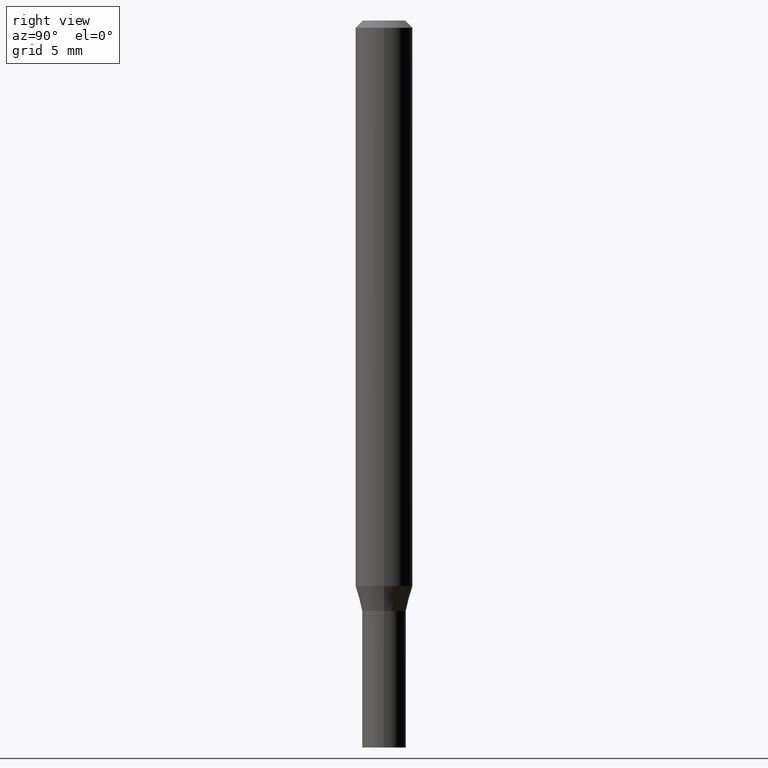
[diagram: clean part render]
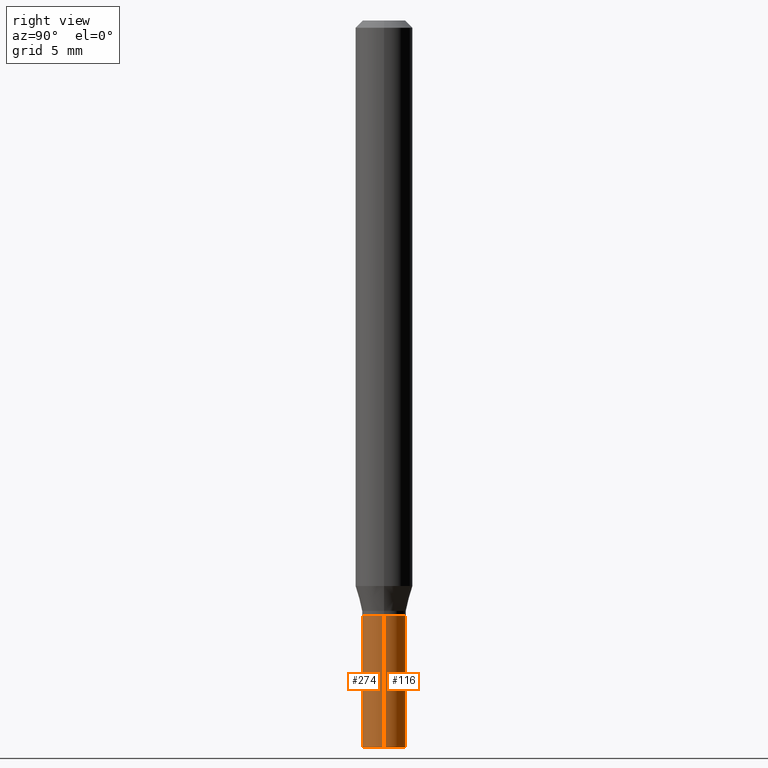
[diagram: same view with one multi-face feature highlighted, each face labeled with its STEP entity id]
A machine part, right view. The highlighted faces form ONE feature: a constant-radius fillet chain: 2 tangent blend faces with common blend radius 1.1506 mm. The faces share edges in the B-rep.
Their STEP definitions:
[1] entity #116 (Cylinder):
#2 = LINE ( 'NONE', #36, #151 ) ;
#21 = ORIENTED_EDGE ( 'NONE', *, *, #256, .T. ) ;
#27 = VERTEX_POINT ( 'NONE', #380 ) ;
#31 = ORIENTED_EDGE ( 'NONE', *, *, #184, .F. ) ;
#33 = FACE_OUTER_BOUND ( 'NONE', #127, .T. ) ;
#36 = CARTESIAN_POINT ( 'NONE',  ( 0.04529999999999999999, -3.163282092991878851E-16, 2.208908079435559189E-30 ) ) ;
#59 = CIRCLE ( 'NONE', #282, 0.04529999999999999999 ) ;
#104 = LINE ( 'NONE', #385, #191 ) ;
#106 = CARTESIAN_POINT ( 'NONE',  ( 0.04529999999999999999, -4.604914737800224341E-15, -1.228300000000000169 ) ) ;
#116 = ADVANCED_FACE ( 'NONE', ( #33 ), #173, .T. ) ;
#119 = CARTESIAN_POINT ( 'NONE',  ( 3.668203209277704895E-29, -5.237222008264718177E-15, -1.500000000000000222 ) ) ;
#127 = EDGE_LOOP ( 'NONE', ( #21, #312, #352, #31 ) ) ;
#151 = VECTOR ( 'NONE', #427, 39.37007874015748143 ) ;
#172 = CARTESIAN_POINT ( 'NONE',  ( -0.04529999999999999999, -4.441028409083551685E-15, -1.228300000000000169 ) ) ;
#173 = CYLINDRICAL_SURFACE ( 'NONE', #463, 0.04529999999999999999 ) ;
#182 = DIRECTION ( 'NONE',  ( -2.445468806185136597E-29, 3.491481338843145583E-15, 1.000000000000000000 ) ) ;
#184 = EDGE_CURVE ( 'NONE', #27, #442, #2, .T. ) ;
#191 = VECTOR ( 'NONE', #460, 39.37007874015748143 ) ;
#192 = DIRECTION ( 'NONE',  ( 1.000000000000000000, -6.982962677686271444E-15, 0.000000000000000000 ) ) ;
#220 = EDGE_CURVE ( 'NONE', #244, #406, #104, .T. ) ;
#224 = DIRECTION ( 'NONE',  ( -2.445468806185136597E-29, 3.491481338843145583E-15, 1.000000000000000000 ) ) ;
#227 = CARTESIAN_POINT ( 'NONE',  ( 3.003769334637203924E-29, -4.288586528501036061E-15, -1.228300000000000169 ) ) ;
#244 = VERTEX_POINT ( 'NONE', #409 ) ;
#252 = AXIS2_PLACEMENT_3D ( 'NONE', #119, #224, #367 ) ;
#256 = EDGE_CURVE ( 'NONE', #27, #244, #423, .T. ) ;
#281 = DIRECTION ( 'NONE',  ( 1.000000000000000000, -6.982962677686266711E-15, 4.876176775795936353E-29 ) ) ;
#282 = AXIS2_PLACEMENT_3D ( 'NONE', #227, #295, #192 ) ;
#295 = DIRECTION ( 'NONE',  ( -2.445468806185136597E-29, 3.491481338843145583E-15, 1.000000000000000000 ) ) ;
#312 = ORIENTED_EDGE ( 'NONE', *, *, #220, .T. ) ;
#319 = EDGE_CURVE ( 'NONE', #442, #406, #59, .T. ) ;
#352 = ORIENTED_EDGE ( 'NONE', *, *, #319, .F. ) ;
#367 = DIRECTION ( 'NONE',  ( 1.000000000000000000, -6.982962677686271444E-15, 0.000000000000000000 ) ) ;
#380 = CARTESIAN_POINT ( 'NONE',  ( 0.04529999999999999999, -5.553550217563906456E-15, -1.500000000000000222 ) ) ;
#385 = CARTESIAN_POINT ( 'NONE',  ( -0.04529999999999999999, 3.218758592993253841E-16, -2.228277595885472214E-30 ) ) ;
#392 = CARTESIAN_POINT ( 'NONE',  ( 0.000000000000000000, 0.000000000000000000, 0.000000000000000000 ) ) ;
#406 = VERTEX_POINT ( 'NONE', #172 ) ;
#409 = CARTESIAN_POINT ( 'NONE',  ( -0.04529999999999999999, -4.441028409083551685E-15, -1.500000000000000222 ) ) ;
#423 = CIRCLE ( 'NONE', #252, 0.04529999999999999999 ) ;
#427 = DIRECTION ( 'NONE',  ( -2.445468806185136877E-29, 3.491481338843145188E-15, 1.000000000000000000 ) ) ;
#442 = VERTEX_POINT ( 'NONE', #106 ) ;
#460 = DIRECTION ( 'NONE',  ( -2.445468806185136877E-29, 3.491481338843145188E-15, 1.000000000000000000 ) ) ;
#463 = AXIS2_PLACEMENT_3D ( 'NONE', #392, #182, #281 ) ;
[2] entity #274 (Cylinder):
#1 = EDGE_CURVE ( 'NONE', #244, #27, #378, .T. ) ;
#2 = LINE ( 'NONE', #36, #151 ) ;
#20 = ORIENTED_EDGE ( 'NONE', *, *, #184, .T. ) ;
#27 = VERTEX_POINT ( 'NONE', #380 ) ;
#36 = CARTESIAN_POINT ( 'NONE',  ( 0.04529999999999999999, -3.163282092991878851E-16, 2.208908079435559189E-30 ) ) ;
#58 = ORIENTED_EDGE ( 'NONE', *, *, #339, .F. ) ;
#77 = CARTESIAN_POINT ( 'NONE',  ( 3.003769334637203924E-29, -4.288586528501036061E-15, -1.228300000000000169 ) ) ;
#104 = LINE ( 'NONE', #385, #191 ) ;
#106 = CARTESIAN_POINT ( 'NONE',  ( 0.04529999999999999999, -4.604914737800224341E-15, -1.228300000000000169 ) ) ;
#111 = CYLINDRICAL_SURFACE ( 'NONE', #386, 0.04529999999999999999 ) ;
#141 = DIRECTION ( 'NONE',  ( -2.445468806185136597E-29, 3.491481338843145583E-15, 1.000000000000000000 ) ) ;
#151 = VECTOR ( 'NONE', #427, 39.37007874015748143 ) ;
#155 = ORIENTED_EDGE ( 'NONE', *, *, #1, .T. ) ;
#158 = CARTESIAN_POINT ( 'NONE',  ( 3.668203209277704895E-29, -5.237222008264718177E-15, -1.500000000000000222 ) ) ;
#170 = AXIS2_PLACEMENT_3D ( 'NONE', #77, #141, #298 ) ;
#172 = CARTESIAN_POINT ( 'NONE',  ( -0.04529999999999999999, -4.441028409083551685E-15, -1.228300000000000169 ) ) ;
#184 = EDGE_CURVE ( 'NONE', #27, #442, #2, .T. ) ;
#189 = FACE_OUTER_BOUND ( 'NONE', #408, .T. ) ;
#191 = VECTOR ( 'NONE', #460, 39.37007874015748143 ) ;
#220 = EDGE_CURVE ( 'NONE', #244, #406, #104, .T. ) ;
#240 = DIRECTION ( 'NONE',  ( -2.445468806185136597E-29, 3.491481338843145583E-15, 1.000000000000000000 ) ) ;
#244 = VERTEX_POINT ( 'NONE', #409 ) ;
#259 = CARTESIAN_POINT ( 'NONE',  ( 0.000000000000000000, 0.000000000000000000, 0.000000000000000000 ) ) ;
#262 = AXIS2_PLACEMENT_3D ( 'NONE', #158, #240, #414 ) ;
#274 = ADVANCED_FACE ( 'NONE', ( #189 ), #111, .T. ) ;
#298 = DIRECTION ( 'NONE',  ( 1.000000000000000000, -6.982962677686271444E-15, 0.000000000000000000 ) ) ;
#300 = DIRECTION ( 'NONE',  ( 1.000000000000000000, -6.982962677686266711E-15, 4.876176775795936353E-29 ) ) ;
#339 = EDGE_CURVE ( 'NONE', #406, #442, #354, .T. ) ;
#354 = CIRCLE ( 'NONE', #170, 0.04529999999999999999 ) ;
#378 = CIRCLE ( 'NONE', #262, 0.04529999999999999999 ) ;
#380 = CARTESIAN_POINT ( 'NONE',  ( 0.04529999999999999999, -5.553550217563906456E-15, -1.500000000000000222 ) ) ;
#385 = CARTESIAN_POINT ( 'NONE',  ( -0.04529999999999999999, 3.218758592993253841E-16, -2.228277595885472214E-30 ) ) ;
#386 = AXIS2_PLACEMENT_3D ( 'NONE', #259, #404, #300 ) ;
#404 = DIRECTION ( 'NONE',  ( -2.445468806185136597E-29, 3.491481338843145583E-15, 1.000000000000000000 ) ) ;
#406 = VERTEX_POINT ( 'NONE', #172 ) ;
#408 = EDGE_LOOP ( 'NONE', ( #459, #155, #20, #58 ) ) ;
#409 = CARTESIAN_POINT ( 'NONE',  ( -0.04529999999999999999, -4.441028409083551685E-15, -1.500000000000000222 ) ) ;
#414 = DIRECTION ( 'NONE',  ( 1.000000000000000000, -6.982962677686271444E-15, 0.000000000000000000 ) ) ;
#427 = DIRECTION ( 'NONE',  ( -2.445468806185136877E-29, 3.491481338843145188E-15, 1.000000000000000000 ) ) ;
#442 = VERTEX_POINT ( 'NONE', #106 ) ;
#459 = ORIENTED_EDGE ( 'NONE', *, *, #220, .F. ) ;
#460 = DIRECTION ( 'NONE',  ( -2.445468806185136877E-29, 3.491481338843145188E-15, 1.000000000000000000 ) ) ;